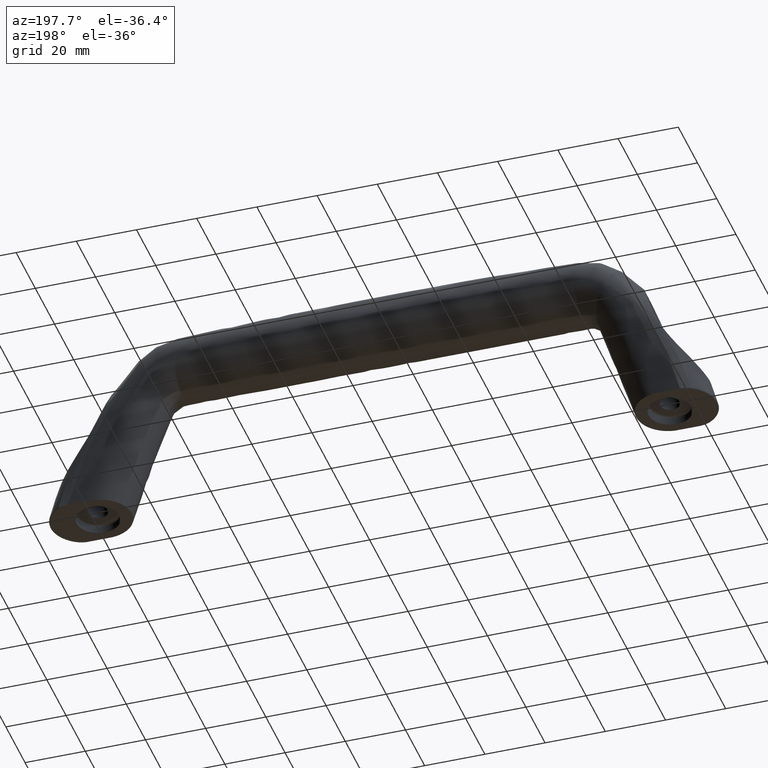
[diagram: clean part render]
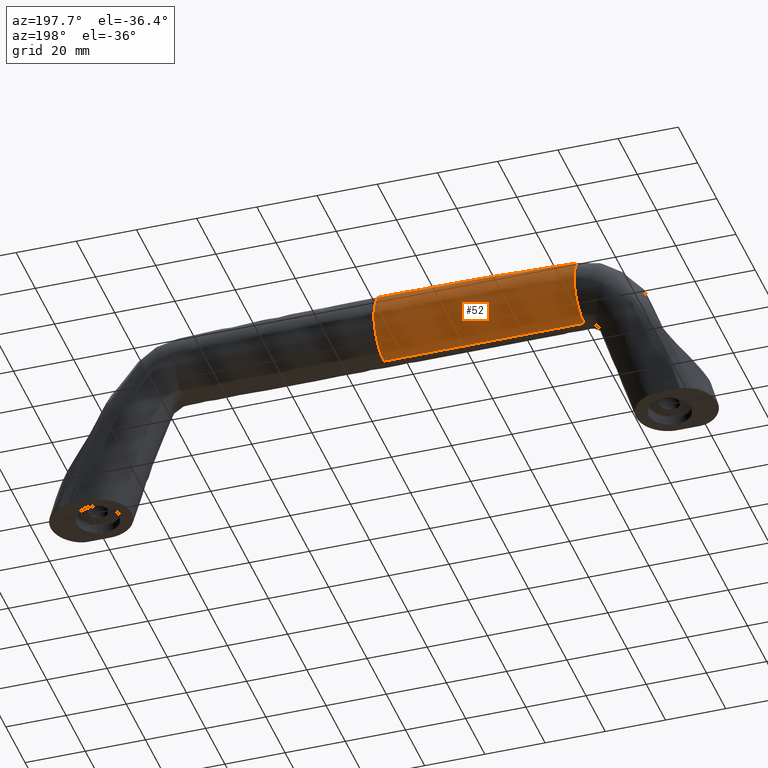
[diagram: same view with one face highlighted and labeled with its STEP entity id]
A machine part, auxiliary view. The second image highlights one B-rep face of the part: STEP entity #52.
In plain terms, the highlighted face is a freeform B-spline surface patch.
Its self-contained STEP definition (entity closure, byte-faithful):
#52=ADVANCED_FACE('',(#211),#210,.T.);
#210=( BOUNDED_SURFACE() B_SPLINE_SURFACE( 3,2,((#1841,#1842,#1843),(#1844,#1845,#1846),(#1847,#1848,#1849),(#1850,#1851,#1852),(#1853,#1854,#1855),(#1856,#1857,#1858),(#1859,#1860,#1861),(#1862,#1863,#1864),(#1865,#1866,#1867),(#1868,#1869,#1870),(#1871,#1872,#1873),(#1874,#1875,#1876),(#1877,#1878,#1879),(#1880,#1881,#1882),(#1883,#1884,#1885),(#1886,#1887,#1888),(#1889,#1890,#1891),(#1892,#1893,#1894),(#1895,#1896,#1897),(#1898,#1899,#1900),(#1901,#1902,#1903),(#1904,#1905,#1906),(#1907,#1908,#1909),(#1910,#1911,#1912),(#1913,#1914,#1915),(#1916,#1917,#1918),(#1919,#1920,#1921),(#1922,#1923,#1924),(#1925,#1926,#1927),(#1928,#1929,#1930),(#1931,#1932,#1933),(#1934,#1935,#1936),(#1937,#1938,#1939),(#1940,#1941,#1942),(#1943,#1944,#1945),(#1946,#1947,#1948),(#1949,#1950,#1951),(#1952,#1953,#1954),(#1955,#1956,#1957),(#1958,#1959,#1960),(#1961,#1962,#1963),(#1964,#1965,#1966),(#1967,#1968,#1969),(#1970,#1971,#1972),(#1973,#1974,#1975),(#1976,#1977,#1978),(#1979,#1980,#1981),(#1982,#1983,#1984)), .UNSPECIFIED.,.F.,.F.,.F.) B_SPLINE_SURFACE_WITH_KNOTS((4,2,2,2,2,2,2,2,2,2,2,2,2,2,2,2,2,2,2,2,2,2,2,4),(3,3),(-5.55111512313E-15,2.12223159148E+00,4.24446318297E+00,6.36669477445E+00,8.48892636594E+00,1.06111579574E+01,1.27333895489E+01,1.48556211404E+01,1.69778527319E+01,1.91000843234E+01,1.96306422212E+01,2.01612001191E+01,2.12223159148E+01,2.22834317106E+01,2.28139896085E+01,2.33445475063E+01,2.38751054042E+01,2.44056633021E+01,2.54667790978E+01,2.75890106893E+01,2.97112422808E+01,3.07723580765E+01,3.18334738723E+01,3.39557054638E+01),(3.00126156158E-01,6.68064569160E+01), .UNSPECIFIED. ) GEOMETRIC_REPRESENTATION_ITEM() RATIONAL_B_SPLINE_SURFACE(((1.00000000000E+00,9.99738862681E-01,1.00000000000E+00),(1.00000000000E+00,9.99738862681E-01,1.00000000000E+00),(1.00000000000E+00,9.99738862681E-01,1.00000000000E+00),(1.00000000000E+00,9.99738862681E-01,1.00000000000E+00),(1.00000000000E+00,9.99738862681E-01,1.00000000000E+00),(1.00000000000E+00,9.99738862681E-01,1.00000000000E+00),(1.00000000000E+00,9.99738862681E-01,1.00000000000E+00),(1.00000000000E+00,9.99738862681E-01,1.00000000000E+00),(1.00000000000E+00,9.99738862681E-01,1.00000000000E+00),(1.00000000000E+00,9.99738862681E-01,1.00000000000E+00),(1.00000000000E+00,9.99738862681E-01,1.00000000000E+00),(1.00000000000E+00,9.99738862681E-01,1.00000000000E+00),(1.00000000000E+00,9.99738862681E-01,1.00000000000E+00),(1.00000000000E+00,9.99738862681E-01,1.00000000000E+00),(1.00000000000E+00,9.99738862681E-01,1.00000000000E+00),(1.00000000000E+00,9.99738862681E-01,1.00000000000E+00),(1.00000000000E+00,9.99738862681E-01,1.00000000000E+00),(1.00000000000E+00,9.99738862681E-01,1.00000000000E+00),(1.00000000000E+00,9.99738862681E-01,1.00000000000E+00),(1.00000000000E+00,9.99738862681E-01,1.00000000000E+00),(1.00000000000E+00,9.99738862681E-01,1.00000000000E+00),(1.00000000000E+00,9.99738862681E-01,1.00000000000E+00),(1.00000000000E+00,9.99738862681E-01,1.00000000000E+00),(1.00000000000E+00,9.99738862681E-01,1.00000000000E+00),(1.00000000000E+00,9.99738862681E-01,1.00000000000E+00),(1.00000000000E+00,9.99738862681E-01,1.00000000000E+00),(1.00000000000E+00,9.99738862681E-01,1.00000000000E+00),(1.00000000000E+00,9.99738862681E-01,1.00000000000E+00),(1.00000000000E+00,9.99738862681E-01,1.00000000000E+00),(1.00000000000E+00,9.99738862681E-01,1.00000000000E+00),(1.00000000000E+00,9.99738862681E-01,1.00000000000E+00),(1.00000000000E+00,9.99738862681E-01,1.00000000000E+00),(1.00000000000E+00,9.99738862681E-01,1.00000000000E+00),(1.00000000000E+00,9.99738862681E-01,1.00000000000E+00),(1.00000000000E+00,9.99738862681E-01,1.00000000000E+00),(1.00000000000E+00,9.99738862681E-01,1.00000000000E+00),(1.00000000000E+00,9.99738862681E-01,1.00000000000E+00),(1.00000000000E+00,9.99738862681E-01,1.00000000000E+00),(1.00000000000E+00,9.99738862681E-01,1.00000000000E+00),(1.00000000000E+00,9.99738862681E-01,1.00000000000E+00),(1.00000000000E+00,9.99738862681E-01,1.00000000000E+00),(1.00000000000E+00,9.99738862681E-01,1.00000000000E+00),(1.00000000000E+00,9.99738862681E-01,1.00000000000E+00),(1.00000000000E+00,9.99738862681E-01,1.00000000000E+00),(1.00000000000E+00,9.99738862681E-01,1.00000000000E+00),(1.00000000000E+00,9.99738862681E-01,1.00000000000E+00),(1.00000000000E+00,9.99738862681E-01,1.00000000000E+00),(1.00000000000E+00,9.99738862681E-01,1.00000000000E+00))) REPRESENTATION_ITEM('') SURFACE() );
#211=FACE_OUTER_BOUND('',#1985,.T.);
#1841=CARTESIAN_POINT('',(-1.61483175279E+02,3.19999780576E+01,5.89999394433E+01));
#1842=CARTESIAN_POINT('',(-1.28241587378E+02,3.19999780576E+01,5.89999394433E+01));
#1843=CARTESIAN_POINT('',(-9.49999994772E+01,3.19999780576E+01,5.89999394433E+01));
#1844=CARTESIAN_POINT('',(-1.61483175279E+02,3.26942143087E+01,5.89998844399E+01));
#1845=CARTESIAN_POINT('',(-1.28241587377E+02,3.27073935317E+01,5.89998910353E+01));
#1846=CARTESIAN_POINT('',(-9.49999994772E+01,3.27205911261E+01,5.89998693048E+01));
#1847=CARTESIAN_POINT('',(-1.61483175279E+02,3.33883276514E+01,5.90689741271E+01));
#1848=CARTESIAN_POINT('',(-1.28241587378E+02,3.34147728657E+01,5.90686546955E+01));
#1849=CARTESIAN_POINT('',(-9.49999994740E+01,3.34411627473E+01,5.90743695716E+01));
#1850=CARTESIAN_POINT('',(-1.61483175279E+02,3.47497106741E+01,5.93425936857E+01));
#1851=CARTESIAN_POINT('',(-1.28241587346E+02,3.48041761435E+01,5.93421160769E+01));
#1852=CARTESIAN_POINT('',(-9.49999994622E+01,3.48518849037E+01,5.93690317684E+01));
#1853=CARTESIAN_POINT('',(-1.61483175279E+02,3.54165295910E+01,5.95470627407E+01));
#1854=CARTESIAN_POINT('',(-1.28241587314E+02,3.54860294330E+01,5.95468406082E+01));
#1855=CARTESIAN_POINT('',(-9.49999994536E+01,3.55420961072E+01,5.95892875026E+01));
#1856=CARTESIAN_POINT('',(-1.61483175279E+02,3.66972335541E+01,6.00835453019E+01));
#1857=CARTESIAN_POINT('',(-1.28241587152E+02,3.67988998388E+01,6.00861401383E+01));
#1858=CARTESIAN_POINT('',(-9.49999994315E+01,3.68627176491E+01,6.01661811538E+01));
#1859=CARTESIAN_POINT('',(-1.61483175279E+02,3.73107817377E+01,6.04154467768E+01));
#1860=CARTESIAN_POINT('',(-1.28241587021E+02,3.74298427316E+01,6.04207258604E+01));
#1861=CARTESIAN_POINT('',(-9.49999994182E+01,3.74932950663E+01,6.05228998061E+01));
#1862=CARTESIAN_POINT('',(-1.61483175279E+02,3.84606613961E+01,6.11937801702E+01));
#1863=CARTESIAN_POINT('',(-1.28241586567E+02,3.86164065456E+01,6.12088334744E+01));
#1864=CARTESIAN_POINT('',(-9.49999993875E+01,3.86680449103E+01,6.13576248905E+01));
#1865=CARTESIAN_POINT('',(-1.61483175279E+02,3.89968214791E+01,6.16401167080E+01));
#1866=CARTESIAN_POINT('',(-1.28241586244E+02,3.91720482488E+01,6.16624217535E+01));
#1867=CARTESIAN_POINT('',(-9.49999993702E+01,3.92124253059E+01,6.18358005911E+01));
#1868=CARTESIAN_POINT('',(-1.61483175279E+02,3.99707057038E+01,6.26297069576E+01));
#1869=CARTESIAN_POINT('',(-1.28241585289E+02,4.01853981620E+01,6.26727879548E+01));
#1870=CARTESIAN_POINT('',(-9.49999993324E+01,4.01916386280E+01,6.28930765712E+01));
#1871=CARTESIAN_POINT('',(-1.61483175279E+02,4.04083766379E+01,6.31728927992E+01));
#1872=CARTESIAN_POINT('',(-1.28241584585E+02,4.06431921291E+01,6.32296509731E+01));
#1873=CARTESIAN_POINT('',(-9.49999993120E+01,4.06266978909E+01,6.34723756038E+01));
#1874=CARTESIAN_POINT('',(-1.61483175279E+02,4.11682258731E+01,6.43350698018E+01));
#1875=CARTESIAN_POINT('',(-1.28241584054E+02,4.14416242261E+01,6.44269593793E+01));
#1876=CARTESIAN_POINT('',(-9.49999992687E+01,4.13691460734E+01,6.47077405247E+01));
#1877=CARTESIAN_POINT('',(-1.61483175279E+02,4.14902548833E+01,6.49538141454E+01));
#1878=CARTESIAN_POINT('',(-1.28241582936E+02,4.17820198480E+01,6.50669861712E+01));
#1879=CARTESIAN_POINT('',(-9.49999992459E+01,4.16764540263E+01,6.53635480552E+01));
#1880=CARTESIAN_POINT('',(-1.61483175279E+02,4.20061903097E+01,6.62428877424E+01));
#1881=CARTESIAN_POINT('',(-1.28241580766E+02,4.23301644013E+01,6.64068202272E+01));
#1882=CARTESIAN_POINT('',(-9.49999991987E+01,4.21506649835E+01,6.67247155438E+01));
#1883=CARTESIAN_POINT('',(-1.61483175279E+02,4.22000125491E+01,6.69130487804E+01));
#1884=CARTESIAN_POINT('',(-1.28241579401E+02,4.25377156396E+01,6.71062281368E+01));
#1885=CARTESIAN_POINT('',(-9.49999991743E+01,4.23173763350E+01,6.74295269735E+01));
#1886=CARTESIAN_POINT('',(-1.61483175279E+02,4.24518144598E+01,6.82785657272E+01));
#1887=CARTESIAN_POINT('',(-1.28241575947E+02,4.28092195709E+01,6.85374150532E+01));
#1888=CARTESIAN_POINT('',(-9.49999991247E+01,4.25032318973E+01,6.88587715216E+01));
#1889=CARTESIAN_POINT('',(-1.61483175279E+02,4.25097640568E+01,6.89736598241E+01));
#1890=CARTESIAN_POINT('',(-1.28241574228E+02,4.28731009244E+01,6.92689399993E+01));
#1891=CARTESIAN_POINT('',(-9.49999990996E+01,4.25223319001E+01,6.95829318172E+01));
#1892=CARTESIAN_POINT('',(-1.61483175279E+02,4.24875711403E+01,7.03619135550E+01));
#1893=CARTESIAN_POINT('',(-1.28241568463E+02,4.28519581099E+01,7.07346973767E+01));
#1894=CARTESIAN_POINT('',(-9.49999990492E+01,4.24119455990E+01,7.10198570432E+01));
#1895=CARTESIAN_POINT('',(-1.61483175279E+02,4.24074111202E+01,7.10550728145E+01));
#1896=CARTESIAN_POINT('',(-1.28241568805E+02,4.27670371554E+01,7.14691657186E+01));
#1897=CARTESIAN_POINT('',(-9.49999990240E+01,4.22828110992E+01,7.17327006010E+01));
#1898=CARTESIAN_POINT('',(-1.61483175279E+02,4.22227853008E+01,7.19028985672E+01));
#1899=CARTESIAN_POINT('',(-1.28241558076E+02,4.25680173233E+01,7.23691005095E+01));
#1900=CARTESIAN_POINT('',(-9.49999989931E+01,4.20311370620E+01,7.25975958278E+01));
#1901=CARTESIAN_POINT('',(-1.61483175279E+02,4.21816702117E+01,7.20715728112E+01));
#1902=CARTESIAN_POINT('',(-1.28241526913E+02,4.25256202080E+01,7.25447481587E+01));
#1903=CARTESIAN_POINT('',(-9.49999989869E+01,4.19782903968E+01,7.27698274905E+01));
#1904=CARTESIAN_POINT('',(-1.61483175279E+02,4.20911286160E+01,7.24066223129E+01));
#1905=CARTESIAN_POINT('',(-1.28241546440E+02,4.24344155587E+01,7.28979791426E+01));
#1906=CARTESIAN_POINT('',(-9.49999989746E+01,4.18703135761E+01,7.31135789582E+01));
#1907=CARTESIAN_POINT('',(-1.61483175279E+02,4.20416723891E+01,7.25731282811E+01));
#1908=CARTESIAN_POINT('',(-1.28241572665E+02,4.23858162980E+01,7.30736494144E+01));
#1909=CARTESIAN_POINT('',(-9.49999989685E+01,4.18146908763E+01,7.32849407921E+01));
#1910=CARTESIAN_POINT('',(-1.61483175279E+02,4.18811322251E+01,7.30683155764E+01));
#1911=CARTESIAN_POINT('',(-1.28241724584E+02,4.22310598584E+01,7.35985052245E+01));
#1912=CARTESIAN_POINT('',(-9.49999989503E+01,4.16433109204E+01,7.37975116839E+01));
#1913=CARTESIAN_POINT('',(-1.61483175279E+02,4.17576726848E+01,7.33932637250E+01));
#1914=CARTESIAN_POINT('',(-1.28241917931E+02,4.21158526887E+01,7.39453515657E+01));
#1915=CARTESIAN_POINT('',(-9.49999989383E+01,4.15228975950E+01,7.41371423384E+01));
#1916=CARTESIAN_POINT('',(-1.61483175279E+02,4.14792619986E+01,7.40291224592E+01));
#1917=CARTESIAN_POINT('',(-1.28242516381E+02,4.18621838998E+01,7.46303016084E+01));
#1918=CARTESIAN_POINT('',(-9.49999989147E+01,4.12699192919E+01,7.48118631887E+01));
#1919=CARTESIAN_POINT('',(-1.61483175279E+02,4.13242568247E+01,7.43402918914E+01));
#1920=CARTESIAN_POINT('',(-1.28242933186E+02,4.17232613061E+01,7.49694222563E+01));
#1921=CARTESIAN_POINT('',(-9.49999989031E+01,4.11373423925E+01,7.51469677013E+01));
#1922=CARTESIAN_POINT('',(-1.61483175279E+02,4.10691871416E+01,7.47940912714E+01));
#1923=CARTESIAN_POINT('',(-1.28243707218E+02,4.14990904397E+01,7.54675567677E+01));
#1924=CARTESIAN_POINT('',(-9.49999988860E+01,4.09295155376E+01,7.56458069205E+01));
#1925=CARTESIAN_POINT('',(-1.61483175279E+02,4.09831799588E+01,7.49449907857E+01));
#1926=CARTESIAN_POINT('',(-1.28243910715E+02,4.14249942942E+01,7.56290903512E+01));
#1927=CARTESIAN_POINT('',(-9.49999988804E+01,4.08586976192E+01,7.58115906957E+01));
#1928=CARTESIAN_POINT('',(-1.61483175279E+02,4.08099344325E+01,7.52456637372E+01));
#1929=CARTESIAN_POINT('',(-1.28244365563E+02,4.12727361449E+01,7.59545195734E+01));
#1930=CARTESIAN_POINT('',(-9.49999988693E+01,4.07141707072E+01,7.61415418967E+01));
#1931=CARTESIAN_POINT('',(-1.61483175279E+02,4.07223004627E+01,7.53955457559E+01));
#1932=CARTESIAN_POINT('',(-1.28244584063E+02,4.11957201769E+01,7.61159293898E+01));
#1933=CARTESIAN_POINT('',(-9.49999988638E+01,4.06405150155E+01,7.63059397926E+01));
#1934=CARTESIAN_POINT('',(-1.61483175279E+02,4.05463329682E+01,7.56946903736E+01));
#1935=CARTESIAN_POINT('',(-1.28245041341E+02,4.10380915698E+01,7.64401305760E+01));
#1936=CARTESIAN_POINT('',(-9.49999988529E+01,4.04897347401E+01,7.66332268118E+01));
#1937=CARTESIAN_POINT('',(-1.61483175279E+02,4.04551495979E+01,7.58423674743E+01));
#1938=CARTESIAN_POINT('',(-1.28245334142E+02,4.09564254875E+01,7.66032538295E+01));
#1939=CARTESIAN_POINT('',(-9.49999988476E+01,4.04140224801E+01,7.67966777797E+01));
#1940=CARTESIAN_POINT('',(-1.61483175279E+02,4.02645364660E+01,7.61325209526E+01));
#1941=CARTESIAN_POINT('',(-1.28246110444E+02,4.07776245369E+01,7.69363007365E+01));
#1942=CARTESIAN_POINT('',(-9.49999988371E+01,4.02543414900E+01,7.71197875935E+01));
#1943=CARTESIAN_POINT('',(-1.61483175279E+02,4.01654929966E+01,7.62751585176E+01));
#1944=CARTESIAN_POINT('',(-1.28246471555E+02,4.06841909674E+01,7.70986739076E+01));
#1945=CARTESIAN_POINT('',(-9.49999988319E+01,4.01693661787E+01,7.72785934024E+01));
#1946=CARTESIAN_POINT('',(-1.61483175279E+02,3.98574353159E+01,7.66948490340E+01));
#1947=CARTESIAN_POINT('',(-1.28247587900E+02,4.03889845165E+01,7.75799336953E+01));
#1948=CARTESIAN_POINT('',(-9.49999988166E+01,3.99006034666E+01,7.77475809912E+01));
#1949=CARTESIAN_POINT('',(-1.61483175279E+02,3.96374296957E+01,7.69639063478E+01));
#1950=CARTESIAN_POINT('',(-1.28248327221E+02,4.01735958950E+01,7.78897999342E+01));
#1951=CARTESIAN_POINT('',(-9.49999988067E+01,3.97025950688E+01,7.80493577047E+01));
#1952=CARTESIAN_POINT('',(-1.61483175279E+02,3.89370880093E+01,7.77346022732E+01));
#1953=CARTESIAN_POINT('',(-1.28250509518E+02,3.94753188133E+01,7.87810889625E+01));
#1954=CARTESIAN_POINT('',(-9.49999987784E+01,3.90567084749E+01,7.89159558151E+01));
#1955=CARTESIAN_POINT('',(-1.61483175279E+02,3.84162605126E+01,7.81993362423E+01));
#1956=CARTESIAN_POINT('',(-1.28251909957E+02,3.89399296241E+01,7.93234647197E+01));
#1957=CARTESIAN_POINT('',(-9.49999987610E+01,3.85562625462E+01,7.94417077110E+01));
#1958=CARTESIAN_POINT('',(-1.61483175279E+02,3.72894199141E+01,7.90105146298E+01));
#1959=CARTESIAN_POINT('',(-1.28254414509E+02,3.77565256220E+01,8.02738510240E+01));
#1960=CARTESIAN_POINT('',(-9.49999987303E+01,3.74447182455E+01,8.03590967401E+01));
#1961=CARTESIAN_POINT('',(-1.61483175279E+02,3.66834032012E+01,7.93569478068E+01));
#1962=CARTESIAN_POINT('',(-1.28255517050E+02,3.71085825254E+01,8.06817869892E+01));
#1963=CARTESIAN_POINT('',(-9.49999987169E+01,3.68336711586E+01,8.07507059658E+01));
#1964=CARTESIAN_POINT('',(-1.61483175279E+02,3.57303390121E+01,7.97763773497E+01));
#1965=CARTESIAN_POINT('',(-1.28256824833E+02,3.60775766972E+01,8.11748462879E+01));
#1966=CARTESIAN_POINT('',(-9.49999987003E+01,3.58602418959E+01,8.12205888695E+01));
#1967=CARTESIAN_POINT('',(-1.61483175279E+02,3.54052985004E+01,7.98995995332E+01));
#1968=CARTESIAN_POINT('',(-1.28257201890E+02,3.57243296058E+01,8.13194489125E+01));
#1969=CARTESIAN_POINT('',(-9.49999986954E+01,3.55262692132E+01,8.13577452302E+01));
#1970=CARTESIAN_POINT('',(-1.61483175279E+02,3.47442174694E+01,8.01113781977E+01));
#1971=CARTESIAN_POINT('',(-1.28257833766E+02,3.50020733145E+01,8.15673774602E+01));
#1972=CARTESIAN_POINT('',(-9.49999986868E+01,3.48445877691E+01,8.15911490857E+01));
#1973=CARTESIAN_POINT('',(-1.61483175279E+02,3.44080460828E+01,8.01999813069E+01));
#1974=CARTESIAN_POINT('',(-1.28258064660E+02,3.46354340658E+01,8.16695235583E+01));
#1975=CARTESIAN_POINT('',(-9.49999986832E+01,3.44965517837E+01,8.16865736069E+01));
#1976=CARTESIAN_POINT('',(-1.61483175279E+02,3.33885640426E+01,8.04124757631E+01));
#1977=CARTESIAN_POINT('',(-1.28258675051E+02,3.35219984482E+01,8.19170727819E+01));
#1978=CARTESIAN_POINT('',(-9.49999986743E+01,3.34409936422E+01,8.19194176438E+01));
#1979=CARTESIAN_POINT('',(-1.61483175279E+02,3.26943088166E+01,8.04827942370E+01));
#1980=CARTESIAN_POINT('',(-1.28258909795E+02,3.27610937081E+01,8.20004832874E+01));
#1981=CARTESIAN_POINT('',(-9.49999986712E+01,3.27206292429E+01,8.19984744049E+01));
#1982=CARTESIAN_POINT('',(-1.61483175279E+02,3.19999780576E+01,8.04803542570E+01));
#1983=CARTESIAN_POINT('',(-1.28258954608E+02,3.19999780576E+01,8.19999959283E+01));
#1984=CARTESIAN_POINT('',(-9.49999986712E+01,3.19999780576E+01,8.19999780579E+01));
#1985=EDGE_LOOP('',(#4612,#4613,#4614,#4615));
#4612=ORIENTED_EDGE('',*,*,#4813,.F.);
#4613=ORIENTED_EDGE('',*,*,#4818,.T.);
#4614=ORIENTED_EDGE('',*,*,#4819,.T.);
#4615=ORIENTED_EDGE('',*,*,#4820,.T.);
#4813=EDGE_CURVE('',#5118,#5119,#5120,.T.);
#4818=EDGE_CURVE('',#5118,#5152,#5153,.T.);
#4819=EDGE_CURVE('',#5152,#5159,#5160,.T.);
#4820=EDGE_CURVE('',#5159,#5119,#5166,.T.);
#5118=VERTEX_POINT('',#6341);
#5119=VERTEX_POINT('',#6342);
#5120=(BOUNDED_CURVE() B_SPLINE_CURVE(2,(#6343,#6344,#6345,#6346,#6347,#6348,#6349,#6350,#6351),.UNSPECIFIED.,.F.,.F.) B_SPLINE_CURVE_WITH_KNOTS((3,2,2,2,3),(-3.65880807057E+01,-2.51853849239E+01,-2.40959586046E+01,-1.20479793023E+01,0.00000000000E+00),.UNSPECIFIED.) CURVE() GEOMETRIC_REPRESENTATION_ITEM() RATIONAL_B_SPLINE_CURVE((1.00000000000E+00,8.68727517694E-01,1.00000000000E+00,9.99940662796E-01,1.00000000000E+00,8.67388181384E-01,1.00000000000E+00,8.67388181384E-01,1.00000000000E+00)) REPRESENTATION_ITEM('') );
#5152=VERTEX_POINT('',#6394);
#5153=CIRCLE('',#6398,1.45503711425E+03);
#5159=VERTEX_POINT('',#6399);
#5160=(BOUNDED_CURVE() B_SPLINE_CURVE(3,(#6400,#6401,#6402,#6403,#6404,#6405,#6406,#6407,#6408,#6409,#6410,#6411,#6412,#6413,#6414,#6415,#6416,#6417,#6418,#6419,#6420,#6421,#6422,#6423,#6424,#6425,#6426,#6427,#6428,#6429,#6430,#6431,#6432,#6433,#6434,#6435,#6436,#6437,#6438,#6439,#6440,#6441,#6442,#6443,#6444,#6445,#6446,#6447),.UNSPECIFIED.,.F.,.F.) B_SPLINE_CURVE_WITH_KNOTS((4,2,2,2,2,2,2,2,2,2,2,2,2,2,2,2,2,2,2,2,2,2,2,4),(0.00000000000E+00,2.16500172646E+00,3.24750258975E+00,4.33000345293E+00,6.49500517939E+00,8.66000690586E+00,9.74250776904E+00,1.02837582007E+01,1.08250086323E+01,1.13662590639E+01,1.19075094955E+01,1.29900103588E+01,1.40725112220E+01,1.46137616536E+01,1.51550120852E+01,1.73200138116E+01,1.94850155381E+01,2.16500172645E+01,2.38150189910E+01,2.59800207174E+01,2.81450224439E+01,3.03100241703E+01,3.24750258968E+01,3.46400276232E+01),.UNSPECIFIED.) CURVE() GEOMETRIC_REPRESENTATION_ITEM() RATIONAL_B_SPLINE_CURVE((1.00000000000E+00,1.00000000000E+00,1.00000000000E+00,1.00000000000E+00,1.00000000000E+00,1.00000000000E+00,1.00000000000E+00,1.00000000000E+00,1.00000000000E+00,1.00000000000E+00,1.00000000000E+00,1.00000000000E+00,1.00000000000E+00,1.00000000000E+00,1.00000000000E+00,1.00000000000E+00,1.00000000000E+00,1.00000000000E+00,1.00000000000E+00,1.00000000000E+00,1.00000000000E+00,1.00000000000E+00,1.00000000000E+00,1.00000000000E+00,1.00000000000E+00,1.00000000000E+00,1.00000000000E+00,1.00000000000E+00,1.00000000000E+00,1.00000000000E+00,1.00000000000E+00,1.00000000000E+00,1.00000000000E+00,1.00000000000E+00,1.00000000000E+00,1.00000000000E+00,1.00000000000E+00,1.00000000000E+00,1.00000000000E+00,1.00000000000E+00,1.00000000000E+00,1.00000000000E+00,1.00000000000E+00,1.00000000000E+00,1.00000000000E+00,1.00000000000E+00,1.00000000000E+00,1.00000000000E+00)) REPRESENTATION_ITEM('') );
#5166=LINE('',#6448,#6449);
#6341=CARTESIAN_POINT('',(-1.61483175279E+02,3.19999780576E+01,8.04803542570E+01));
#6342=CARTESIAN_POINT('',(-1.61483175279E+02,3.19999780576E+01,5.89999394433E+01));
#6343=CARTESIAN_POINT('',(-1.61483175279E+02,3.19999780576E+01,8.04803542570E+01));
#6344=CARTESIAN_POINT('',(-1.61483175279E+02,3.77013091289E+01,8.04999394433E+01));
#6345=CARTESIAN_POINT('',(-1.61483175279E+02,4.06054246432E+01,7.55936894433E+01));
#6346=CARTESIAN_POINT('',(-1.61483175279E+02,4.08828879090E+01,7.51249394433E+01));
#6347=CARTESIAN_POINT('',(-1.61483175279E+02,4.11500731613E+01,7.46502558990E+01));
#6348=CARTESIAN_POINT('',(-1.61483175279E+02,4.41048782117E+01,6.94007246408E+01));
#6349=CARTESIAN_POINT('',(-1.61483175279E+02,4.10644229602E+01,6.42003320420E+01));
#6350=CARTESIAN_POINT('',(-1.61483175279E+02,3.80239677088E+01,5.89999394433E+01));
#6351=CARTESIAN_POINT('',(-1.61483175279E+02,3.19999780576E+01,5.89999394433E+01));
#6394=CARTESIAN_POINT('',(-9.49999986712E+01,3.19999780576E+01,8.19999780579E+01));
#6395=CARTESIAN_POINT('',(-9.50007805855E+01,3.19999780576E+01,-1.37303713620E+03));
#6396=DIRECTION('',(2.13617454822E-16,1.00000000000E+00,-9.34669603341E-15));
#6397=DIRECTION('',(4.56912019920E-02,-9.34669489130E-15,-9.98955611657E-01));
#6398=AXIS2_PLACEMENT_3D('',#6395,#6396,#6397);
#6399=CARTESIAN_POINT('',(-9.49999994772E+01,3.19999780576E+01,5.89999394433E+01));
#6400=CARTESIAN_POINT('',(-9.49999986712E+01,3.19999780576E+01,8.19999780579E+01));
#6401=CARTESIAN_POINT('',(-9.49999986712E+01,3.27206292429E+01,8.19984744049E+01));
#6402=CARTESIAN_POINT('',(-9.49999986743E+01,3.34409936422E+01,8.19194176438E+01));
#6403=CARTESIAN_POINT('',(-9.49999986832E+01,3.44965517837E+01,8.16865736069E+01));
#6404=CARTESIAN_POINT('',(-9.49999986868E+01,3.48445877691E+01,8.15911490857E+01));
#6405=CARTESIAN_POINT('',(-9.49999986954E+01,3.55262692132E+01,8.13577452302E+01));
#6406=CARTESIAN_POINT('',(-9.49999987003E+01,3.58602418959E+01,8.12205888695E+01));
#6407=CARTESIAN_POINT('',(-9.49999987169E+01,3.68336711586E+01,8.07507059658E+01));
#6408=CARTESIAN_POINT('',(-9.49999987303E+01,3.74447182455E+01,8.03590967401E+01));
#6409=CARTESIAN_POINT('',(-9.49999987610E+01,3.85562625462E+01,7.94417077110E+01));
#6410=CARTESIAN_POINT('',(-9.49999987784E+01,3.90567084749E+01,7.89159558151E+01));
#6411=CARTESIAN_POINT('',(-9.49999988067E+01,3.97025950688E+01,7.80493577047E+01));
#6412=CARTESIAN_POINT('',(-9.49999988166E+01,3.99006034666E+01,7.77475809912E+01));
#6413=CARTESIAN_POINT('',(-9.49999988319E+01,4.01693661787E+01,7.72785934024E+01));
#6414=CARTESIAN_POINT('',(-9.49999988371E+01,4.02543414900E+01,7.71197875935E+01));
#6415=CARTESIAN_POINT('',(-9.49999988476E+01,4.04140224801E+01,7.67966777797E+01));
#6416=CARTESIAN_POINT('',(-9.49999988529E+01,4.04897347401E+01,7.66332268118E+01));
#6417=CARTESIAN_POINT('',(-9.49999988638E+01,4.06405150155E+01,7.63059397926E+01));
#6418=CARTESIAN_POINT('',(-9.49999988693E+01,4.07141707072E+01,7.61415418967E+01));
#6419=CARTESIAN_POINT('',(-9.49999988804E+01,4.08586976192E+01,7.58115906957E+01));
#6420=CARTESIAN_POINT('',(-9.49999988860E+01,4.09295155376E+01,7.56458069205E+01));
#6421=CARTESIAN_POINT('',(-9.49999989031E+01,4.11373423925E+01,7.51469677013E+01));
#6422=CARTESIAN_POINT('',(-9.49999989147E+01,4.12699192919E+01,7.48118631887E+01));
#6423=CARTESIAN_POINT('',(-9.49999989383E+01,4.15228975950E+01,7.41371423384E+01));
#6424=CARTESIAN_POINT('',(-9.49999989503E+01,4.16433109204E+01,7.37975116839E+01));
#6425=CARTESIAN_POINT('',(-9.49999989685E+01,4.18146908763E+01,7.32849407921E+01));
#6426=CARTESIAN_POINT('',(-9.49999989746E+01,4.18703135761E+01,7.31135789582E+01));
#6427=CARTESIAN_POINT('',(-9.49999989869E+01,4.19782903968E+01,7.27698274905E+01));
#6428=CARTESIAN_POINT('',(-9.49999989931E+01,4.20311370620E+01,7.25975958278E+01));
#6429=CARTESIAN_POINT('',(-9.49999990240E+01,4.22828110992E+01,7.17327006010E+01));
#6430=CARTESIAN_POINT('',(-9.49999990492E+01,4.24119455990E+01,7.10198570432E+01));
#6431=CARTESIAN_POINT('',(-9.49999990996E+01,4.25223319001E+01,6.95829318172E+01));
#6432=CARTESIAN_POINT('',(-9.49999991247E+01,4.25032318973E+01,6.88587715216E+01));
#6433=CARTESIAN_POINT('',(-9.49999991743E+01,4.23173763350E+01,6.74295269735E+01));
#6434=CARTESIAN_POINT('',(-9.49999991987E+01,4.21506649835E+01,6.67247155438E+01));
#6435=CARTESIAN_POINT('',(-9.49999992459E+01,4.16764540263E+01,6.53635480552E+01));
#6436=CARTESIAN_POINT('',(-9.49999992687E+01,4.13691460734E+01,6.47077405247E+01));
#6437=CARTESIAN_POINT('',(-9.49999993120E+01,4.06266978909E+01,6.34723756038E+01));
#6438=CARTESIAN_POINT('',(-9.49999993324E+01,4.01916386280E+01,6.28930765712E+01));
#6439=CARTESIAN_POINT('',(-9.49999993702E+01,3.92124253059E+01,6.18358005911E+01));
#6440=CARTESIAN_POINT('',(-9.49999993875E+01,3.86680449103E+01,6.13576248905E+01));
#6441=CARTESIAN_POINT('',(-9.49999994182E+01,3.74932950663E+01,6.05228998061E+01));
#6442=CARTESIAN_POINT('',(-9.49999994315E+01,3.68627176491E+01,6.01661811538E+01));
#6443=CARTESIAN_POINT('',(-9.49999994536E+01,3.55420961072E+01,5.95892875026E+01));
#6444=CARTESIAN_POINT('',(-9.49999994622E+01,3.48518849037E+01,5.93690317684E+01));
#6445=CARTESIAN_POINT('',(-9.49999994740E+01,3.34411627473E+01,5.90743695716E+01));
#6446=CARTESIAN_POINT('',(-9.49999994772E+01,3.27205911261E+01,5.89998693048E+01));
#6447=CARTESIAN_POINT('',(-9.49999994772E+01,3.19999780576E+01,5.89999394433E+01));
#6448=CARTESIAN_POINT('',(-9.49999994772E+01,3.19999780576E+01,5.89999394433E+01));
#6449=VECTOR('',#6450,6.64831758015E+01);
#6450=DIRECTION('',(-1.00000000000E+00,0.00000000000E+00,0.00000000000E+00));